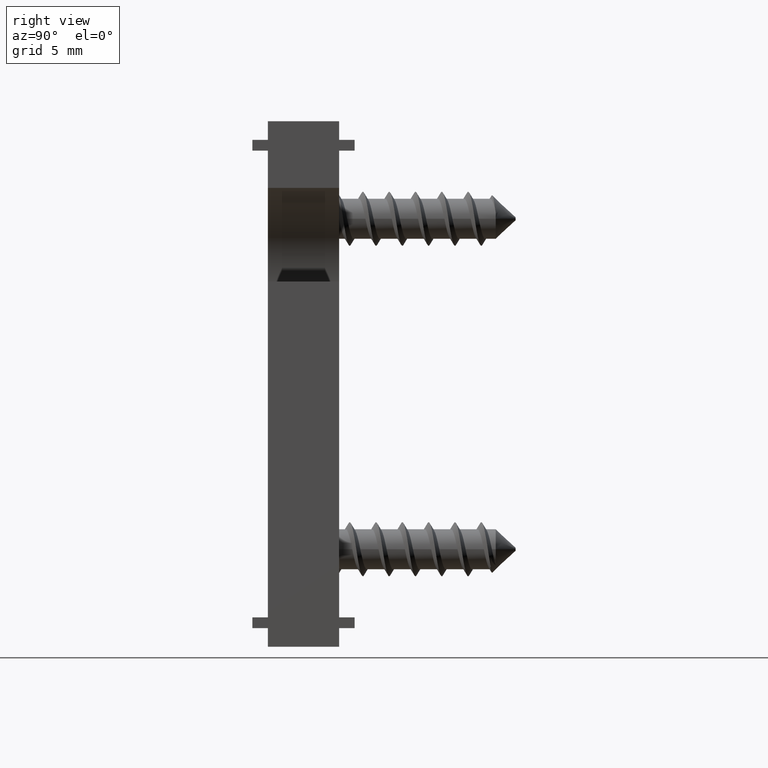
[diagram: clean part render]
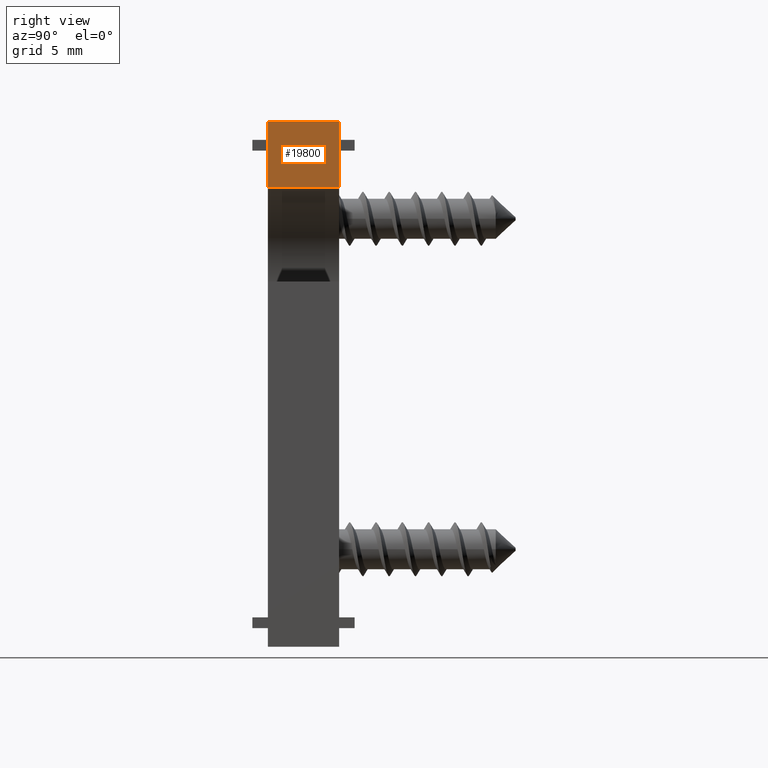
[diagram: same view with one face highlighted and labeled with its STEP entity id]
A machine part, right view. The second image highlights one B-rep face of the part: STEP entity #19800.
In plain terms, the highlighted planar face has unit normal (1, 0, 0).
Its self-contained STEP definition (entity closure, byte-faithful):
#1310=CARTESIAN_POINT('',(6.39773500000005,19.457183,-34.0000000000006))
;
#1320=VERTEX_POINT('',#1310);
#1350=CARTESIAN_POINT('',(6.397735,19.457183,-21.1604260008068));
#1360=DIRECTION('',(0.,0.,1.));
#1370=VECTOR('',#1360,1.);
#1380=LINE('',#1350,#1370);
#1390=CARTESIAN_POINT('',(6.397735,19.457183,-29.6969223483123));
#1400=VERTEX_POINT('',#1390);
#1410=EDGE_CURVE('',#1320,#1400,#1380,.T.);
#2050=CARTESIAN_POINT('',(6.397735,24.057183,-29.6969223483123));
#2060=VERTEX_POINT('',#2050);
#2090=CARTESIAN_POINT('',(6.397735,24.057183,-21.1604260008068));
#2100=DIRECTION('',(0.,0.,1.));
#2110=VECTOR('',#2100,1.);
#2120=LINE('',#2090,#2110);
#2130=CARTESIAN_POINT('',(6.39773500000005,24.057183,-34.0000000000006))
;
#2140=VERTEX_POINT('',#2130);
#2150=EDGE_CURVE('',#2140,#2060,#2120,.T.);
#19050=CARTESIAN_POINT('',(6.397735,25.1171854,-29.6969223483123));
#19060=DIRECTION('',(0.,-1.,0.));
#19070=VECTOR('',#19060,1.);
#19080=LINE('',#19050,#19070);
#19090=EDGE_CURVE('',#2060,#1400,#19080,.T.);
#19500=CARTESIAN_POINT('',(6.39773500000005,24.057183,-34.0000000000006)
);
#19510=DIRECTION('',(0.,-1.,0.));
#19520=VECTOR('',#19510,1.);
#19530=LINE('',#19500,#19520);
#19540=EDGE_CURVE('',#2140,#1320,#19530,.T.);
#19690=CARTESIAN_POINT('',(6.397735,19.457183,-27.4703059282655));
#19700=DIRECTION('',(-1.,0.,0.));
#19710=DIRECTION('',(0.,0.,1.));
#19720=AXIS2_PLACEMENT_3D('',#19690,#19700,#19710);
#19730=PLANE('',#19720);
#19740=ORIENTED_EDGE('',*,*,#1410,.T.);
#19750=ORIENTED_EDGE('',*,*,#19540,.T.);
#19760=ORIENTED_EDGE('',*,*,#2150,.F.);
#19770=ORIENTED_EDGE('',*,*,#19090,.F.);
#19780=EDGE_LOOP('',(#19770,#19760,#19750,#19740));
#19790=FACE_OUTER_BOUND('',#19780,.T.);
#19800=ADVANCED_FACE('',(#19790),#19730,.T.);